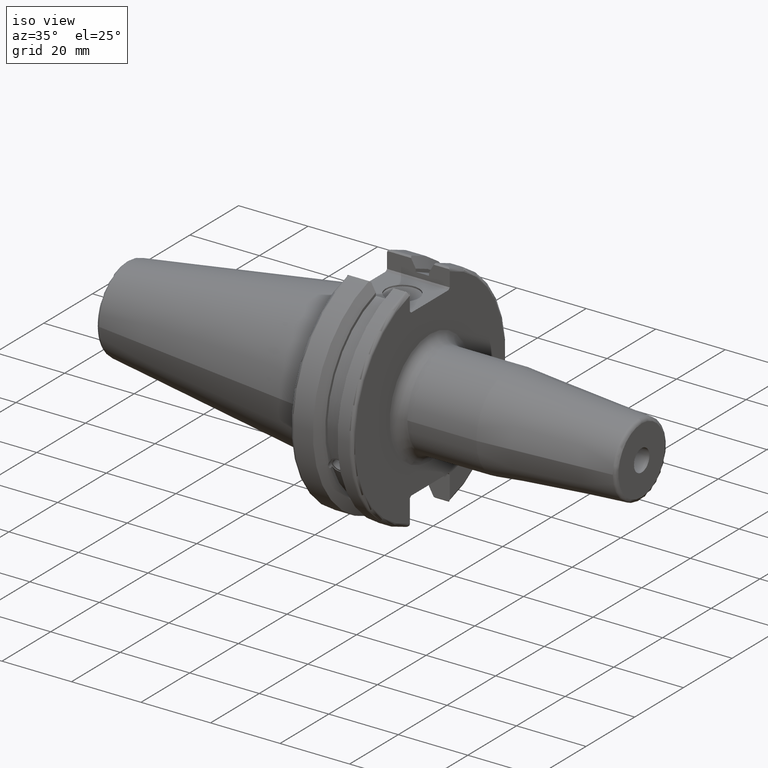
[diagram: clean part render]
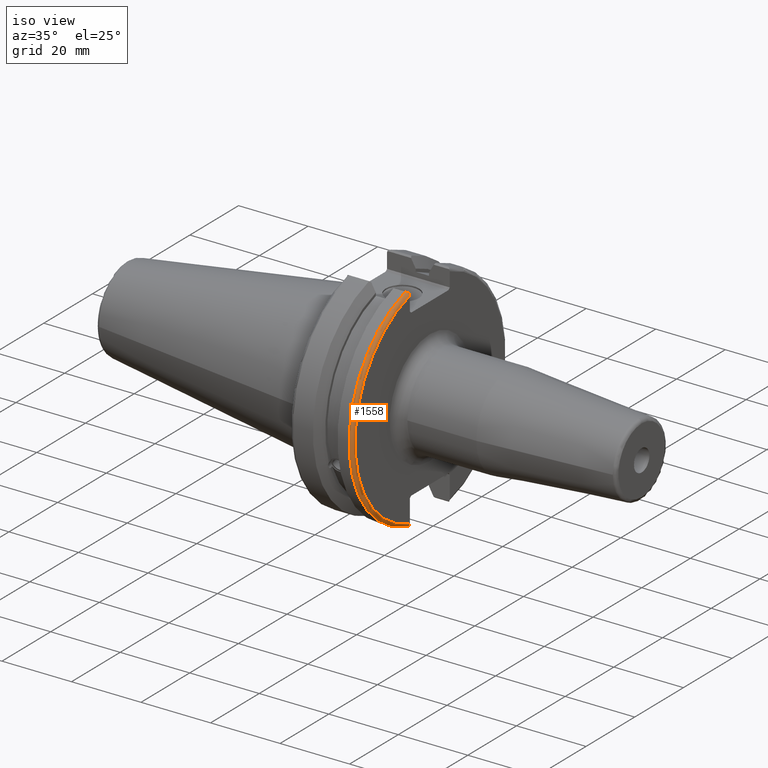
[diagram: same view with one face highlighted and labeled with its STEP entity id]
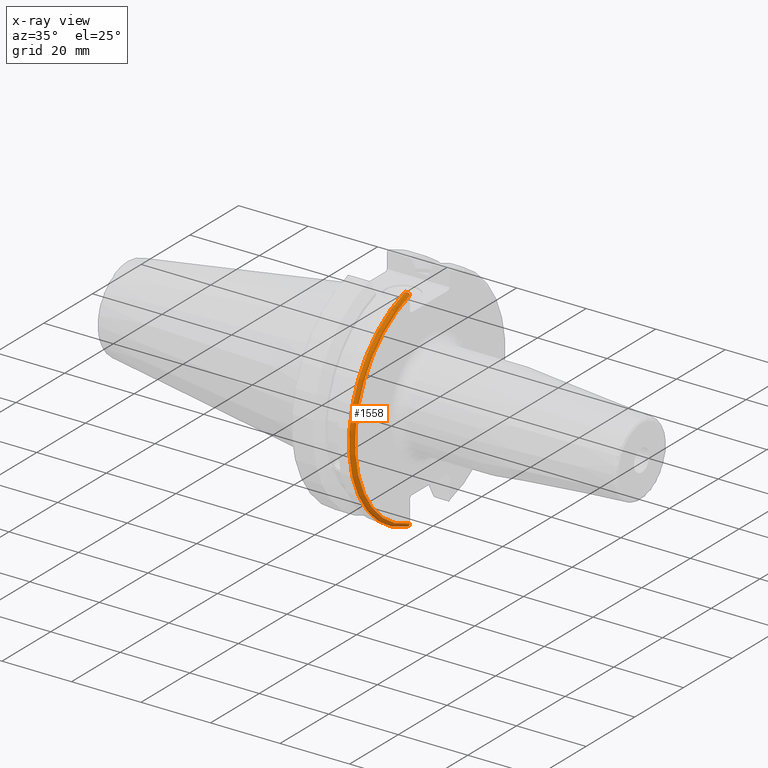
[diagram: x-ray of the same camera — body ghosted, the highlighted face saturated]
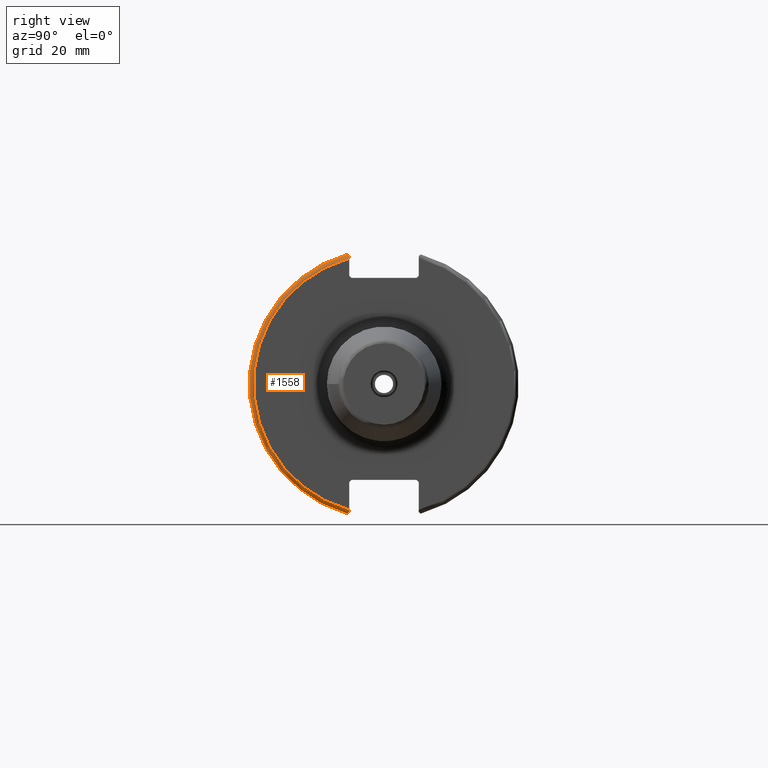
[diagram: same view with one face highlighted and labeled with its STEP entity id]
A machine part, iso view. The second image highlights one B-rep face of the part: STEP entity #1558.
The next image is the same camera in x-ray: the body ghosted, the highlighted face saturated — about 0% of this face is hidden behind the body in this view.
A second angle (right view) of the same face is appended — the face is thin or edge-on in the first view.
In plain terms, the highlighted toroidal blend (fillet) surface has major radius 30.75 mm and minor (blend) radius 1 mm.
Its self-contained STEP definition (entity closure, byte-faithful):
#70=B_SPLINE_CURVE_WITH_KNOTS('',3,(#2791,#2792,#2793,#2794,#2795,#2796),
 .UNSPECIFIED.,.F.,.F.,(4,2,4),(0.0977383630915687,0.112311108149119,0.150804350305566),
 .UNSPECIFIED.);
#71=B_SPLINE_CURVE_WITH_KNOTS('',3,(#2798,#2799,#2800,#2801,#2802,#2803),
 .UNSPECIFIED.,.F.,.F.,(4,2,4),(0.452741154494497,0.491581665024872,0.505824174364156),
 .UNSPECIFIED.);
#72=B_SPLINE_CURVE_WITH_KNOTS('',3,(#2805,#2806,#2807,#2808,#2809,#2810,
#2811,#2812),.UNSPECIFIED.,.F.,.F.,(4,2,2,4),(-0.104180282751876,-0.072978474246144,
-0.0343524753874979,0.),.UNSPECIFIED.);
#73=B_SPLINE_CURVE_WITH_KNOTS('',3,(#2815,#2816,#2817,#2818,#2819,#2820,
#2821,#2822),.UNSPECIFIED.,.F.,.F.,(4,2,2,4),(0.,0.0343524753874979,0.0729784742461441,
0.104180282751877),.UNSPECIFIED.);
#414=FACE_OUTER_BOUND('',#513,.T.);
#513=EDGE_LOOP('',(#1272,#1273,#1274,#1275,#1276,#1277));
#575=CIRCLE('',#1643,30.75);
#609=CIRCLE('',#1734,31.75);
#653=VERTEX_POINT('',#2308);
#654=VERTEX_POINT('',#2310);
#744=VERTEX_POINT('',#2790);
#745=VERTEX_POINT('',#2797);
#746=VERTEX_POINT('',#2804);
#747=VERTEX_POINT('',#2813);
#813=EDGE_CURVE('',#654,#653,#575,.T.);
#939=EDGE_CURVE('',#744,#654,#70,.T.);
#940=EDGE_CURVE('',#653,#745,#71,.T.);
#941=EDGE_CURVE('',#745,#746,#72,.T.);
#942=EDGE_CURVE('',#746,#747,#609,.T.);
#943=EDGE_CURVE('',#747,#744,#73,.T.);
#1272=ORIENTED_EDGE('',*,*,#939,.T.);
#1273=ORIENTED_EDGE('',*,*,#813,.T.);
#1274=ORIENTED_EDGE('',*,*,#940,.T.);
#1275=ORIENTED_EDGE('',*,*,#941,.T.);
#1276=ORIENTED_EDGE('',*,*,#942,.T.);
#1277=ORIENTED_EDGE('',*,*,#943,.T.);
#1509=TOROIDAL_SURFACE('',#1733,30.75,1.);
#1558=ADVANCED_FACE('',(#414),#1509,.T.);
#1643=AXIS2_PLACEMENT_3D('',#2311,#1851,#1852);
#1733=AXIS2_PLACEMENT_3D('',#2789,#2076,#2077);
#1734=AXIS2_PLACEMENT_3D('',#2814,#2078,#2079);
#1851=DIRECTION('center_axis',(-1.,0.,0.));
#1852=DIRECTION('ref_axis',(0.,-1.,1.60812264967664E-16));
#2076=DIRECTION('center_axis',(1.,0.,0.));
#2077=DIRECTION('ref_axis',(0.,0.,-1.));
#2078=DIRECTION('center_axis',(1.,0.,0.));
#2079=DIRECTION('ref_axis',(0.,-1.,1.60812264967664E-16));
#2308=CARTESIAN_POINT('',(19.05,-8.19,29.6392712461019));
#2310=CARTESIAN_POINT('',(19.05,-8.19,-29.6392712461019));
#2311=CARTESIAN_POINT('Origin',(19.05,0.,0.));
#2789=CARTESIAN_POINT('Origin',(18.05,0.,0.));
#2790=CARTESIAN_POINT('',(18.9058722749097,-8.19,-30.1755016258903));
#2791=CARTESIAN_POINT('Ctrl Pts',(18.9058722749097,-8.19,-30.1755016258903));
#2792=CARTESIAN_POINT('Ctrl Pts',(18.9324477233044,-8.19,-30.1299319366157));
#2793=CARTESIAN_POINT('Ctrl Pts',(18.9550700364447,-8.19,-30.0829389905409));
#2794=CARTESIAN_POINT('Ctrl Pts',(19.0210043632013,-8.19,-29.9188002007263));
#2795=CARTESIAN_POINT('Ctrl Pts',(19.05,-8.19,-29.76758205329));
#2796=CARTESIAN_POINT('Ctrl Pts',(19.05,-8.19,-29.6392712461019));
#2797=CARTESIAN_POINT('',(18.9058722749097,-8.19,30.1755016258903));
#2798=CARTESIAN_POINT('Ctrl Pts',(19.05,-8.19,29.6392712461019));
#2799=CARTESIAN_POINT('Ctrl Pts',(19.05,-8.19,29.7687396145364));
#2800=CARTESIAN_POINT('Ctrl Pts',(19.020485567083,-8.19,29.9212724384851));
#2801=CARTESIAN_POINT('Ctrl Pts',(18.9539643471756,-8.19,30.0852355256475));
#2802=CARTESIAN_POINT('Ctrl Pts',(18.9318163728133,-8.19,30.131014531546));
#2803=CARTESIAN_POINT('Ctrl Pts',(18.9058722749097,-8.19,30.1755016258903));
#2804=CARTESIAN_POINT('',(18.05,-8.67204822802685,30.5427254764662));
#2805=CARTESIAN_POINT('Ctrl Pts',(18.9058722749097,-8.19,30.1755016258903));
#2806=CARTESIAN_POINT('Ctrl Pts',(18.8574463042989,-8.2703682833078,30.2367261024977));
#2807=CARTESIAN_POINT('Ctrl Pts',(18.7926702662319,-8.34909446036477,30.2966996242308));
#2808=CARTESIAN_POINT('Ctrl Pts',(18.6396724190507,-8.48862804755883,30.4029961692546));
#2809=CARTESIAN_POINT('Ctrl Pts',(18.5184414294771,-8.56482138642532,30.4610401774263));
#2810=CARTESIAN_POINT('Ctrl Pts',(18.2983170433775,-8.6471881193939,30.5237870709558));
#2811=CARTESIAN_POINT('Ctrl Pts',(18.1645082512917,-8.67204822802685,30.5427254764662));
#2812=CARTESIAN_POINT('Ctrl Pts',(18.05,-8.67204822802685,30.5427254764662));
#2813=CARTESIAN_POINT('',(18.05,-8.67204822802685,-30.5427254764662));
#2814=CARTESIAN_POINT('Origin',(18.05,0.,0.));
#2815=CARTESIAN_POINT('Ctrl Pts',(18.05,-8.67204822802686,-30.5427254764662));
#2816=CARTESIAN_POINT('Ctrl Pts',(18.1645082512917,-8.67204822802686,-30.5427254764662));
#2817=CARTESIAN_POINT('Ctrl Pts',(18.2983170433775,-8.6471881193939,-30.5237870709558));
#2818=CARTESIAN_POINT('Ctrl Pts',(18.5184414294771,-8.56482138642532,-30.4610401774263));
#2819=CARTESIAN_POINT('Ctrl Pts',(18.6396724190507,-8.48862804755884,-30.4029961692546));
#2820=CARTESIAN_POINT('Ctrl Pts',(18.7926702662319,-8.34909446036477,-30.2966996242308));
#2821=CARTESIAN_POINT('Ctrl Pts',(18.8574463042989,-8.27036828330781,-30.2367261024977));
#2822=CARTESIAN_POINT('Ctrl Pts',(18.9058722749097,-8.19,-30.1755016258903));